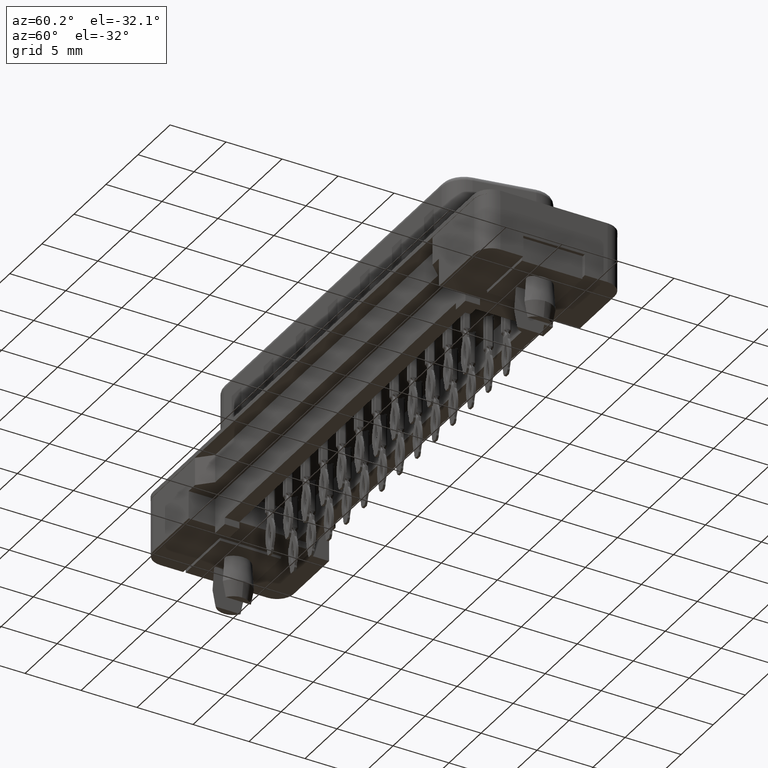
[diagram: clean part render]
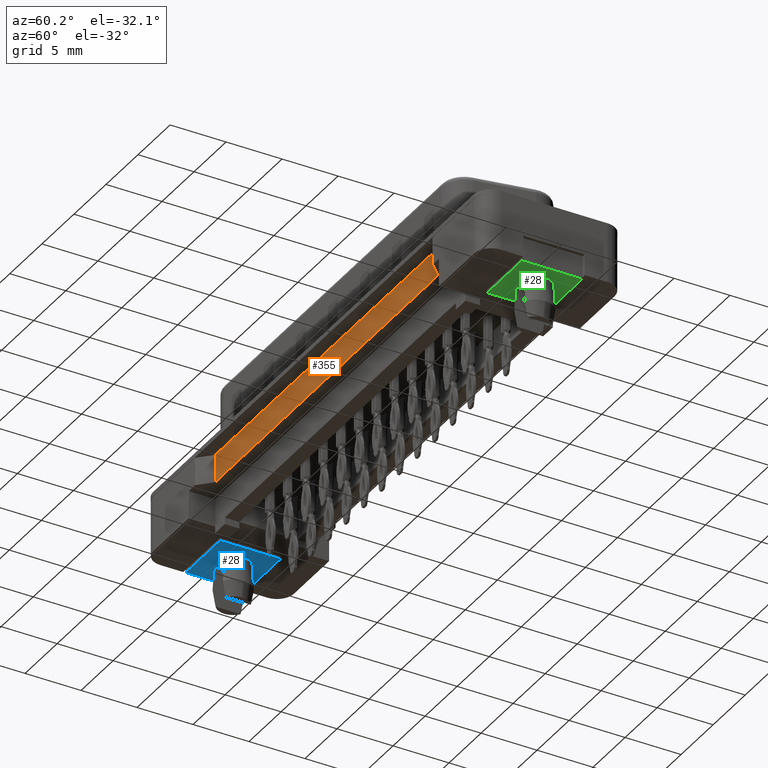
[diagram: same view with three faces highlighted in distinct colors, each labeled with its STEP entity id]
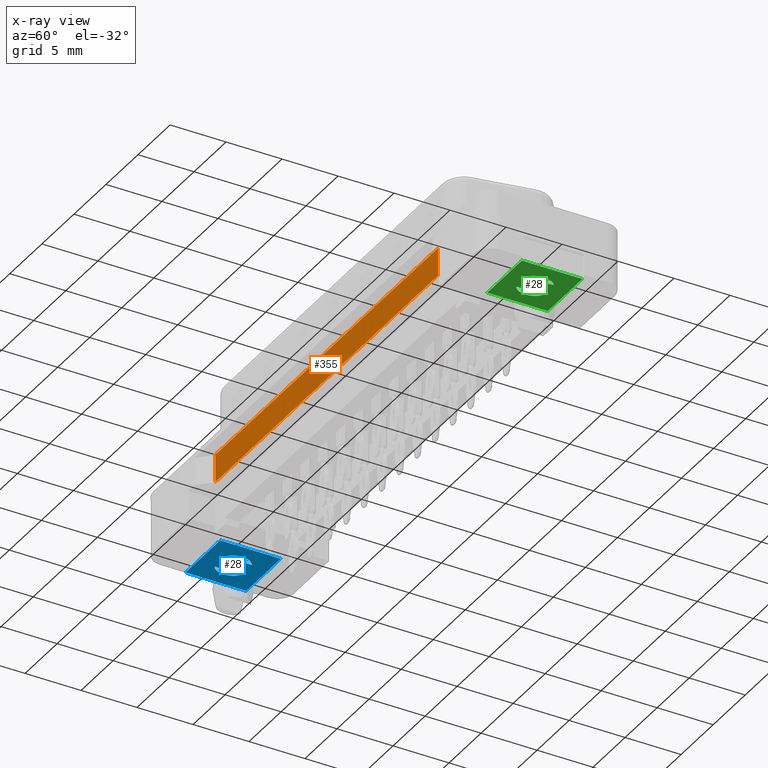
[diagram: x-ray of the same camera — body ghosted, the three highlighted faces saturated]
A machine part, auxiliary view with three faces highlighted in distinct colors.
The next image is the same camera in x-ray (body ghosted, the three faces saturated) — at least one of them is partly hidden behind the body in this view.
Their STEP definitions:

[orange] entity #355 — the highlighted planar face has unit normal (0, -1, 0).
#326 = VECTOR ( 'NONE', #17682, 1000.000000000000000 ) ;
#355 = ADVANCED_FACE ( 'NONE', ( #10790 ), #12793, .T. ) ;
#1187 = EDGE_CURVE ( 'NONE', #24017, #13765, #21667, .T. ) ;
#1883 = CARTESIAN_POINT ( 'NONE',  ( 40.89000000000000767, -5.124999999999996447, 0.0000000000000000000 ) ) ;
#2982 = CARTESIAN_POINT ( 'NONE',  ( 6.149999999999990585, -5.125000000000000888, -5.000000000000000000 ) ) ;
#6782 = ORIENTED_EDGE ( 'NONE', *, *, #1187, .F. ) ;
#7365 = VECTOR ( 'NONE', #24286, 1000.000000000000000 ) ;
#7375 = VECTOR ( 'NONE', #23941, 1000.000000000000000 ) ;
#7821 = VERTEX_POINT ( 'NONE', #1883 ) ;
#10790 = FACE_OUTER_BOUND ( 'NONE', #17202, .T. ) ;
#11370 = CARTESIAN_POINT ( 'NONE',  ( 6.149999999999990585, -5.125000000000000888, -5.000000000000000000 ) ) ;
#11459 = ORIENTED_EDGE ( 'NONE', *, *, #23429, .F. ) ;
#12188 = CARTESIAN_POINT ( 'NONE',  ( 40.89000000000000767, -5.124999999999996447, -2.500000000000000000 ) ) ;
#12793 = PLANE ( 'NONE',  #18547 ) ;
#13765 = VERTEX_POINT ( 'NONE', #15209 ) ;
#13767 = ORIENTED_EDGE ( 'NONE', *, *, #24411, .T. ) ;
#13791 = CARTESIAN_POINT ( 'NONE',  ( 40.89000000000000767, -5.124999999999996447, -5.000000000000000000 ) ) ;
#14100 = CARTESIAN_POINT ( 'NONE',  ( 6.149999999999990585, -5.125000000000000888, -2.500000000000000000 ) ) ;
#14130 = VERTEX_POINT ( 'NONE', #22518 ) ;
#14432 = DIRECTION ( 'NONE',  ( 1.248361741491656610E-16, -1.000000000000000000, 0.0000000000000000000 ) ) ;
#15209 = CARTESIAN_POINT ( 'NONE',  ( 6.149999999999990585, -5.125000000000000888, -2.500000000000000000 ) ) ;
#16063 = LINE ( 'NONE', #13791, #326 ) ;
#16572 = CARTESIAN_POINT ( 'NONE',  ( 6.149999999999990585, -5.125000000000000888, 0.0000000000000000000 ) ) ;
#17202 = EDGE_LOOP ( 'NONE', ( #6782, #13767, #24322, #11459 ) ) ;
#17682 = DIRECTION ( 'NONE',  ( 0.0000000000000000000, 0.0000000000000000000, 1.000000000000000000 ) ) ;
#18460 = DIRECTION ( 'NONE',  ( 1.000000000000000000, 1.248361741491656610E-16, 0.0000000000000000000 ) ) ;
#18547 = AXIS2_PLACEMENT_3D ( 'NONE', #2982, #14432, #18460 ) ;
#19268 = DIRECTION ( 'NONE',  ( 0.0000000000000000000, 0.0000000000000000000, 1.000000000000000000 ) ) ;
#20968 = EDGE_CURVE ( 'NONE', #14130, #7821, #22375, .T. ) ;
#21161 = LINE ( 'NONE', #11370, #23217 ) ;
#21667 = LINE ( 'NONE', #14100, #7375 ) ;
#22375 = LINE ( 'NONE', #16572, #7365 ) ;
#22518 = CARTESIAN_POINT ( 'NONE',  ( 6.149999999999990585, -5.125000000000000888, 0.0000000000000000000 ) ) ;
#23217 = VECTOR ( 'NONE', #19268, 1000.000000000000000 ) ;
#23429 = EDGE_CURVE ( 'NONE', #13765, #14130, #21161, .T. ) ;
#23941 = DIRECTION ( 'NONE',  ( -1.000000000000000000, -1.248361741491656610E-16, 0.0000000000000000000 ) ) ;
#24017 = VERTEX_POINT ( 'NONE', #12188 ) ;
#24286 = DIRECTION ( 'NONE',  ( 1.000000000000000000, 1.248361741491656610E-16, 0.0000000000000000000 ) ) ;
#24322 = ORIENTED_EDGE ( 'NONE', *, *, #20968, .F. ) ;
#24411 = EDGE_CURVE ( 'NONE', #24017, #7821, #16063, .T. ) ;

[blue] entity #28 — the highlighted planar face has unit normal (0, 0, 1).
#28 = ADVANCED_FACE ( 'NONE', ( #13071, #20752, #12834 ), #24430, .F. ) ;
#191 = EDGE_CURVE ( 'NONE', #9473, #17875, #23516, .T. ) ;
#969 = DIRECTION ( 'NONE',  ( -0.0000000000000000000, -0.0000000000000000000, 1.000000000000000000 ) ) ;
#1149 = EDGE_CURVE ( 'NONE', #3462, #9473, #18362, .T. ) ;
#1361 = EDGE_CURVE ( 'NONE', #17875, #4305, #3643, .T. ) ;
#1680 = AXIS2_PLACEMENT_3D ( 'NONE', #8807, #3258, #5276 ) ;
#1885 = ORIENTED_EDGE ( 'NONE', *, *, #12949, .T. ) ;
#1919 = ORIENTED_EDGE ( 'NONE', *, *, #18135, .T. ) ;
#2403 = EDGE_CURVE ( 'NONE', #22250, #4882, #3022, .T. ) ;
#2864 = AXIS2_PLACEMENT_3D ( 'NONE', #14546, #969, #10662 ) ;
#2881 = ORIENTED_EDGE ( 'NONE', *, *, #1361, .T. ) ;
#2949 = EDGE_LOOP ( 'NONE', ( #24236, #1885 ) ) ;
#2973 = VERTEX_POINT ( 'NONE', #20345 ) ;
#3022 = CIRCLE ( 'NONE', #17879, 1.475000000000000089 ) ;
#3258 = DIRECTION ( 'NONE',  ( 0.0000000000000000000, -0.0000000000000000000, 1.000000000000000000 ) ) ;
#3462 = VERTEX_POINT ( 'NONE', #15384 ) ;
#3603 = LINE ( 'NONE', #13520, #7738 ) ;
#3613 = LINE ( 'NONE', #15418, #6379 ) ;
#3643 = LINE ( 'NONE', #9192, #5778 ) ;
#4075 = DIRECTION ( 'NONE',  ( 1.000000000000000000, 0.0000000000000000000, 0.0000000000000000000 ) ) ;
#4305 = VERTEX_POINT ( 'NONE', #5123 ) ;
#4377 = CARTESIAN_POINT ( 'NONE',  ( -2.700000000000000622, -2.700000000000000622, -5.200000000000000178 ) ) ;
#4452 = CARTESIAN_POINT ( 'NONE',  ( 0.7999999999999999334, 1.239203373139373232, -5.200000000000000178 ) ) ;
#4882 = VERTEX_POINT ( 'NONE', #4452 ) ;
#4909 = DIRECTION ( 'NONE',  ( -0.0000000000000000000, -1.000000000000000000, -0.0000000000000000000 ) ) ;
#5123 = CARTESIAN_POINT ( 'NONE',  ( -2.700000000000000622, 2.700000000000001066, -5.200000000000000178 ) ) ;
#5143 = ORIENTED_EDGE ( 'NONE', *, *, #1149, .T. ) ;
#5276 = DIRECTION ( 'NONE',  ( 1.000000000000000000, 0.0000000000000000000, 0.0000000000000000000 ) ) ;
#5747 = DIRECTION ( 'NONE',  ( 0.0000000000000000000, -1.000000000000000000, 0.0000000000000000000 ) ) ;
#5778 = VECTOR ( 'NONE', #13198, 1000.000000000000000 ) ;
#6253 = DIRECTION ( 'NONE',  ( -1.000000000000000000, 1.606225440719265874E-16, -0.0000000000000000000 ) ) ;
#6379 = VECTOR ( 'NONE', #5747, 1000.000000000000000 ) ;
#6652 = ORIENTED_EDGE ( 'NONE', *, *, #17137, .T. ) ;
#6690 = DIRECTION ( 'NONE',  ( -0.0000000000000000000, -0.0000000000000000000, 1.000000000000000000 ) ) ;
#7265 = EDGE_LOOP ( 'NONE', ( #12073, #6652, #1919 ) ) ;
#7738 = VECTOR ( 'NONE', #15905, 1000.000000000000000 ) ;
#8807 = CARTESIAN_POINT ( 'NONE',  ( 0.0000000000000000000, 2.000000000000000000, -5.200000000000000178 ) ) ;
#9192 = CARTESIAN_POINT ( 'NONE',  ( -2.700000000000000622, -2.700000000000000622, -5.200000000000000178 ) ) ;
#9473 = VERTEX_POINT ( 'NONE', #10776 ) ;
#9809 = CARTESIAN_POINT ( 'NONE',  ( -2.700000000000000622, 2.700000000000001066, -5.200000000000000178 ) ) ;
#10179 = VECTOR ( 'NONE', #4909, 1000.000000000000000 ) ;
#10662 = DIRECTION ( 'NONE',  ( 1.000000000000000000, 0.0000000000000000000, 0.0000000000000000000 ) ) ;
#10738 = CARTESIAN_POINT ( 'NONE',  ( -0.8000000000000001554, 1.239203373139373010, -5.200000000000000178 ) ) ;
#10776 = CARTESIAN_POINT ( 'NONE',  ( 2.699999999999999734, -2.700000000000001510, -5.200000000000000178 ) ) ;
#10904 = ORIENTED_EDGE ( 'NONE', *, *, #13855, .T. ) ;
#12049 = VECTOR ( 'NONE', #13568, 1000.000000000000000 ) ;
#12073 = ORIENTED_EDGE ( 'NONE', *, *, #18761, .T. ) ;
#12627 = VERTEX_POINT ( 'NONE', #21634 ) ;
#12834 = FACE_OUTER_BOUND ( 'NONE', #20242, .T. ) ;
#12949 = EDGE_CURVE ( 'NONE', #4882, #22250, #3613, .T. ) ;
#13071 = FACE_BOUND ( 'NONE', #7265, .T. ) ;
#13198 = DIRECTION ( 'NONE',  ( 0.0000000000000000000, 1.000000000000000000, 0.0000000000000000000 ) ) ;
#13520 = CARTESIAN_POINT ( 'NONE',  ( -0.8000000000000001554, -1.599999999999999867, -5.200000000000000178 ) ) ;
#13568 = DIRECTION ( 'NONE',  ( 1.000000000000000000, -1.606225440719265874E-16, 0.0000000000000000000 ) ) ;
#13729 = VECTOR ( 'NONE', #6253, 1000.000000000000000 ) ;
#13855 = EDGE_CURVE ( 'NONE', #4305, #3462, #15573, .T. ) ;
#14365 = DIRECTION ( 'NONE',  ( 1.000000000000000000, 0.0000000000000000000, 0.0000000000000000000 ) ) ;
#14546 = CARTESIAN_POINT ( 'NONE',  ( 0.0000000000000000000, 0.0000000000000000000, -5.200000000000000178 ) ) ;
#15384 = CARTESIAN_POINT ( 'NONE',  ( 2.699999999999999734, 2.700000000000000178, -5.200000000000000178 ) ) ;
#15385 = DIRECTION ( 'NONE',  ( -0.0000000000000000000, -0.0000000000000000000, 1.000000000000000000 ) ) ;
#15418 = CARTESIAN_POINT ( 'NONE',  ( 0.7999999999999999334, -1.599999999999999867, -5.200000000000000178 ) ) ;
#15573 = LINE ( 'NONE', #9809, #12049 ) ;
#15905 = DIRECTION ( 'NONE',  ( 0.0000000000000000000, 1.000000000000000000, 0.0000000000000000000 ) ) ;
#16233 = CARTESIAN_POINT ( 'NONE',  ( 2.699999999999999734, -2.700000000000001510, -5.200000000000000178 ) ) ;
#17137 = EDGE_CURVE ( 'NONE', #21404, #12627, #19315, .T. ) ;
#17875 = VERTEX_POINT ( 'NONE', #20570 ) ;
#17879 = AXIS2_PLACEMENT_3D ( 'NONE', #18924, #15385, #4075 ) ;
#18135 = EDGE_CURVE ( 'NONE', #12627, #2973, #18159, .T. ) ;
#18159 = CIRCLE ( 'NONE', #21386, 1.475000000000000089 ) ;
#18247 = CARTESIAN_POINT ( 'NONE',  ( 0.7999999999999999334, -1.239203373139373232, -5.200000000000000178 ) ) ;
#18362 = LINE ( 'NONE', #16233, #10179 ) ;
#18761 = EDGE_CURVE ( 'NONE', #2973, #21404, #3603, .T. ) ;
#18924 = CARTESIAN_POINT ( 'NONE',  ( 0.0000000000000000000, 0.0000000000000000000, -5.200000000000000178 ) ) ;
#19315 = CIRCLE ( 'NONE', #2864, 1.475000000000000089 ) ;
#20242 = EDGE_LOOP ( 'NONE', ( #5143, #23041, #2881, #10904 ) ) ;
#20345 = CARTESIAN_POINT ( 'NONE',  ( -0.8000000000000001554, -1.239203373139373010, -5.200000000000000178 ) ) ;
#20570 = CARTESIAN_POINT ( 'NONE',  ( -2.700000000000000622, -2.700000000000000622, -5.200000000000000178 ) ) ;
#20752 = FACE_BOUND ( 'NONE', #2949, .T. ) ;
#21386 = AXIS2_PLACEMENT_3D ( 'NONE', #23969, #6690, #14365 ) ;
#21404 = VERTEX_POINT ( 'NONE', #10738 ) ;
#21634 = CARTESIAN_POINT ( 'NONE',  ( -1.475000000000000089, 0.0000000000000000000, -5.200000000000000178 ) ) ;
#22250 = VERTEX_POINT ( 'NONE', #18247 ) ;
#23041 = ORIENTED_EDGE ( 'NONE', *, *, #191, .T. ) ;
#23516 = LINE ( 'NONE', #4377, #13729 ) ;
#23969 = CARTESIAN_POINT ( 'NONE',  ( 0.0000000000000000000, 0.0000000000000000000, -5.200000000000000178 ) ) ;
#24236 = ORIENTED_EDGE ( 'NONE', *, *, #2403, .T. ) ;
#24430 = PLANE ( 'NONE',  #1680 ) ;

[green] entity #28 — the highlighted planar face has unit normal (0, 0, 1).
#28 = ADVANCED_FACE ( 'NONE', ( #13071, #20752, #12834 ), #24430, .F. ) ;
#191 = EDGE_CURVE ( 'NONE', #9473, #17875, #23516, .T. ) ;
#969 = DIRECTION ( 'NONE',  ( -0.0000000000000000000, -0.0000000000000000000, 1.000000000000000000 ) ) ;
#1149 = EDGE_CURVE ( 'NONE', #3462, #9473, #18362, .T. ) ;
#1361 = EDGE_CURVE ( 'NONE', #17875, #4305, #3643, .T. ) ;
#1680 = AXIS2_PLACEMENT_3D ( 'NONE', #8807, #3258, #5276 ) ;
#1885 = ORIENTED_EDGE ( 'NONE', *, *, #12949, .T. ) ;
#1919 = ORIENTED_EDGE ( 'NONE', *, *, #18135, .T. ) ;
#2403 = EDGE_CURVE ( 'NONE', #22250, #4882, #3022, .T. ) ;
#2864 = AXIS2_PLACEMENT_3D ( 'NONE', #14546, #969, #10662 ) ;
#2881 = ORIENTED_EDGE ( 'NONE', *, *, #1361, .T. ) ;
#2949 = EDGE_LOOP ( 'NONE', ( #24236, #1885 ) ) ;
#2973 = VERTEX_POINT ( 'NONE', #20345 ) ;
#3022 = CIRCLE ( 'NONE', #17879, 1.475000000000000089 ) ;
#3258 = DIRECTION ( 'NONE',  ( 0.0000000000000000000, -0.0000000000000000000, 1.000000000000000000 ) ) ;
#3462 = VERTEX_POINT ( 'NONE', #15384 ) ;
#3603 = LINE ( 'NONE', #13520, #7738 ) ;
#3613 = LINE ( 'NONE', #15418, #6379 ) ;
#3643 = LINE ( 'NONE', #9192, #5778 ) ;
#4075 = DIRECTION ( 'NONE',  ( 1.000000000000000000, 0.0000000000000000000, 0.0000000000000000000 ) ) ;
#4305 = VERTEX_POINT ( 'NONE', #5123 ) ;
#4377 = CARTESIAN_POINT ( 'NONE',  ( -2.700000000000000622, -2.700000000000000622, -5.200000000000000178 ) ) ;
#4452 = CARTESIAN_POINT ( 'NONE',  ( 0.7999999999999999334, 1.239203373139373232, -5.200000000000000178 ) ) ;
#4882 = VERTEX_POINT ( 'NONE', #4452 ) ;
#4909 = DIRECTION ( 'NONE',  ( -0.0000000000000000000, -1.000000000000000000, -0.0000000000000000000 ) ) ;
#5123 = CARTESIAN_POINT ( 'NONE',  ( -2.700000000000000622, 2.700000000000001066, -5.200000000000000178 ) ) ;
#5143 = ORIENTED_EDGE ( 'NONE', *, *, #1149, .T. ) ;
#5276 = DIRECTION ( 'NONE',  ( 1.000000000000000000, 0.0000000000000000000, 0.0000000000000000000 ) ) ;
#5747 = DIRECTION ( 'NONE',  ( 0.0000000000000000000, -1.000000000000000000, 0.0000000000000000000 ) ) ;
#5778 = VECTOR ( 'NONE', #13198, 1000.000000000000000 ) ;
#6253 = DIRECTION ( 'NONE',  ( -1.000000000000000000, 1.606225440719265874E-16, -0.0000000000000000000 ) ) ;
#6379 = VECTOR ( 'NONE', #5747, 1000.000000000000000 ) ;
#6652 = ORIENTED_EDGE ( 'NONE', *, *, #17137, .T. ) ;
#6690 = DIRECTION ( 'NONE',  ( -0.0000000000000000000, -0.0000000000000000000, 1.000000000000000000 ) ) ;
#7265 = EDGE_LOOP ( 'NONE', ( #12073, #6652, #1919 ) ) ;
#7738 = VECTOR ( 'NONE', #15905, 1000.000000000000000 ) ;
#8807 = CARTESIAN_POINT ( 'NONE',  ( 0.0000000000000000000, 2.000000000000000000, -5.200000000000000178 ) ) ;
#9192 = CARTESIAN_POINT ( 'NONE',  ( -2.700000000000000622, -2.700000000000000622, -5.200000000000000178 ) ) ;
#9473 = VERTEX_POINT ( 'NONE', #10776 ) ;
#9809 = CARTESIAN_POINT ( 'NONE',  ( -2.700000000000000622, 2.700000000000001066, -5.200000000000000178 ) ) ;
#10179 = VECTOR ( 'NONE', #4909, 1000.000000000000000 ) ;
#10662 = DIRECTION ( 'NONE',  ( 1.000000000000000000, 0.0000000000000000000, 0.0000000000000000000 ) ) ;
#10738 = CARTESIAN_POINT ( 'NONE',  ( -0.8000000000000001554, 1.239203373139373010, -5.200000000000000178 ) ) ;
#10776 = CARTESIAN_POINT ( 'NONE',  ( 2.699999999999999734, -2.700000000000001510, -5.200000000000000178 ) ) ;
#10904 = ORIENTED_EDGE ( 'NONE', *, *, #13855, .T. ) ;
#12049 = VECTOR ( 'NONE', #13568, 1000.000000000000000 ) ;
#12073 = ORIENTED_EDGE ( 'NONE', *, *, #18761, .T. ) ;
#12627 = VERTEX_POINT ( 'NONE', #21634 ) ;
#12834 = FACE_OUTER_BOUND ( 'NONE', #20242, .T. ) ;
#12949 = EDGE_CURVE ( 'NONE', #4882, #22250, #3613, .T. ) ;
#13071 = FACE_BOUND ( 'NONE', #7265, .T. ) ;
#13198 = DIRECTION ( 'NONE',  ( 0.0000000000000000000, 1.000000000000000000, 0.0000000000000000000 ) ) ;
#13520 = CARTESIAN_POINT ( 'NONE',  ( -0.8000000000000001554, -1.599999999999999867, -5.200000000000000178 ) ) ;
#13568 = DIRECTION ( 'NONE',  ( 1.000000000000000000, -1.606225440719265874E-16, 0.0000000000000000000 ) ) ;
#13729 = VECTOR ( 'NONE', #6253, 1000.000000000000000 ) ;
#13855 = EDGE_CURVE ( 'NONE', #4305, #3462, #15573, .T. ) ;
#14365 = DIRECTION ( 'NONE',  ( 1.000000000000000000, 0.0000000000000000000, 0.0000000000000000000 ) ) ;
#14546 = CARTESIAN_POINT ( 'NONE',  ( 0.0000000000000000000, 0.0000000000000000000, -5.200000000000000178 ) ) ;
#15384 = CARTESIAN_POINT ( 'NONE',  ( 2.699999999999999734, 2.700000000000000178, -5.200000000000000178 ) ) ;
#15385 = DIRECTION ( 'NONE',  ( -0.0000000000000000000, -0.0000000000000000000, 1.000000000000000000 ) ) ;
#15418 = CARTESIAN_POINT ( 'NONE',  ( 0.7999999999999999334, -1.599999999999999867, -5.200000000000000178 ) ) ;
#15573 = LINE ( 'NONE', #9809, #12049 ) ;
#15905 = DIRECTION ( 'NONE',  ( 0.0000000000000000000, 1.000000000000000000, 0.0000000000000000000 ) ) ;
#16233 = CARTESIAN_POINT ( 'NONE',  ( 2.699999999999999734, -2.700000000000001510, -5.200000000000000178 ) ) ;
#17137 = EDGE_CURVE ( 'NONE', #21404, #12627, #19315, .T. ) ;
#17875 = VERTEX_POINT ( 'NONE', #20570 ) ;
#17879 = AXIS2_PLACEMENT_3D ( 'NONE', #18924, #15385, #4075 ) ;
#18135 = EDGE_CURVE ( 'NONE', #12627, #2973, #18159, .T. ) ;
#18159 = CIRCLE ( 'NONE', #21386, 1.475000000000000089 ) ;
#18247 = CARTESIAN_POINT ( 'NONE',  ( 0.7999999999999999334, -1.239203373139373232, -5.200000000000000178 ) ) ;
#18362 = LINE ( 'NONE', #16233, #10179 ) ;
#18761 = EDGE_CURVE ( 'NONE', #2973, #21404, #3603, .T. ) ;
#18924 = CARTESIAN_POINT ( 'NONE',  ( 0.0000000000000000000, 0.0000000000000000000, -5.200000000000000178 ) ) ;
#19315 = CIRCLE ( 'NONE', #2864, 1.475000000000000089 ) ;
#20242 = EDGE_LOOP ( 'NONE', ( #5143, #23041, #2881, #10904 ) ) ;
#20345 = CARTESIAN_POINT ( 'NONE',  ( -0.8000000000000001554, -1.239203373139373010, -5.200000000000000178 ) ) ;
#20570 = CARTESIAN_POINT ( 'NONE',  ( -2.700000000000000622, -2.700000000000000622, -5.200000000000000178 ) ) ;
#20752 = FACE_BOUND ( 'NONE', #2949, .T. ) ;
#21386 = AXIS2_PLACEMENT_3D ( 'NONE', #23969, #6690, #14365 ) ;
#21404 = VERTEX_POINT ( 'NONE', #10738 ) ;
#21634 = CARTESIAN_POINT ( 'NONE',  ( -1.475000000000000089, 0.0000000000000000000, -5.200000000000000178 ) ) ;
#22250 = VERTEX_POINT ( 'NONE', #18247 ) ;
#23041 = ORIENTED_EDGE ( 'NONE', *, *, #191, .T. ) ;
#23516 = LINE ( 'NONE', #4377, #13729 ) ;
#23969 = CARTESIAN_POINT ( 'NONE',  ( 0.0000000000000000000, 0.0000000000000000000, -5.200000000000000178 ) ) ;
#24236 = ORIENTED_EDGE ( 'NONE', *, *, #2403, .T. ) ;
#24430 = PLANE ( 'NONE',  #1680 ) ;